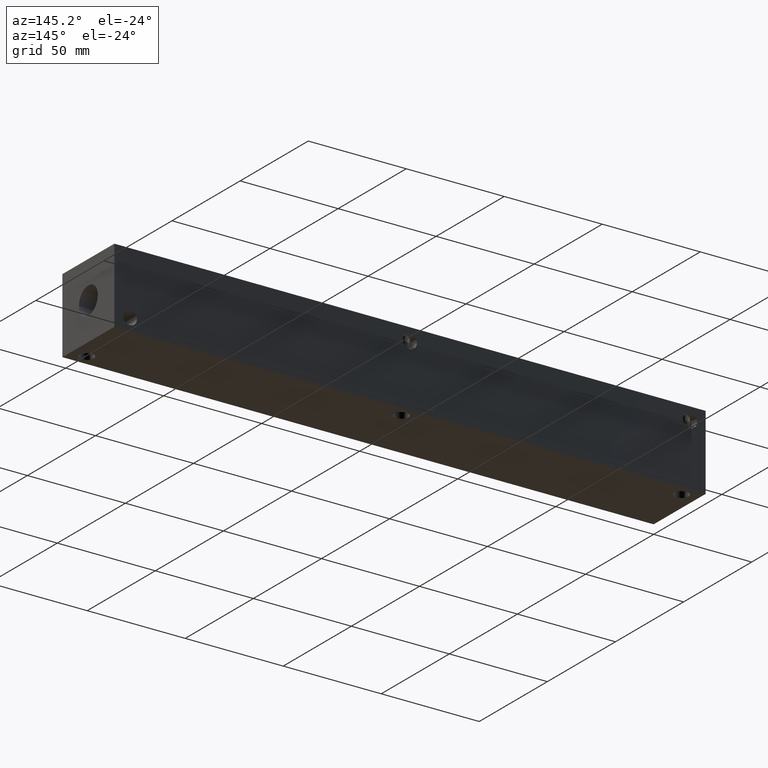
[diagram: clean part render]
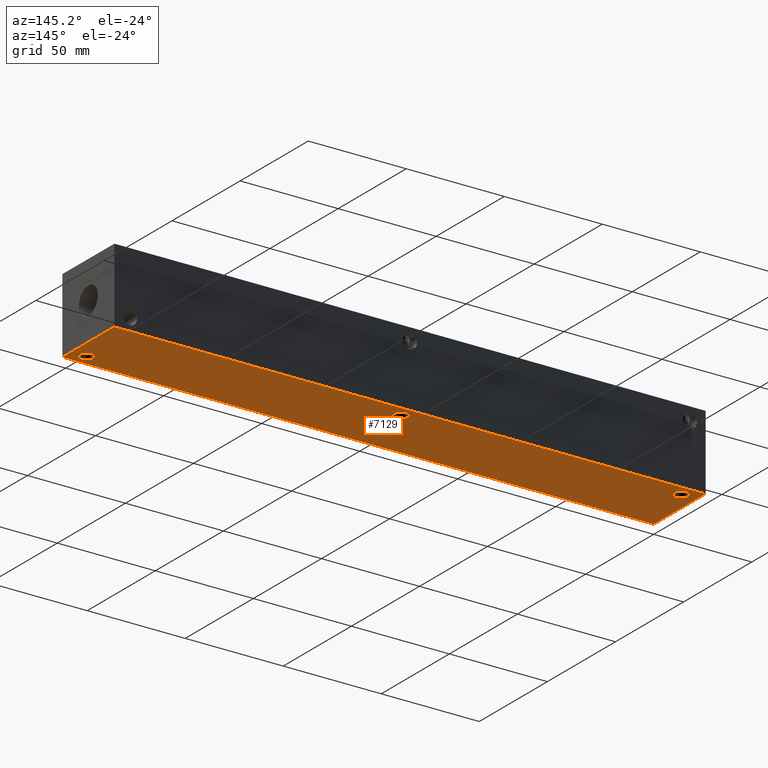
[diagram: same view with one face highlighted and labeled with its STEP entity id]
A machine part, auxiliary view. The second image highlights one B-rep face of the part: STEP entity #7129.
In plain terms, the highlighted planar face has unit normal (0, 0, 1).
Its self-contained STEP definition (entity closure, byte-faithful):
#99=CIRCLE('',#7396,3.5687);
#100=CIRCLE('',#7398,3.5687);
#101=CIRCLE('',#7400,3.5687);
#215=FACE_BOUND('',#1218,.T.);
#216=FACE_BOUND('',#1219,.T.);
#217=FACE_BOUND('',#1220,.T.);
#432=PLANE('',#7500);
#795=FACE_OUTER_BOUND('',#1217,.T.);
#1217=EDGE_LOOP('',(#6359,#6360,#6361,#6362));
#1218=EDGE_LOOP('',(#6363));
#1219=EDGE_LOOP('',(#6364));
#1220=EDGE_LOOP('',(#6365));
#1880=LINE('',#12252,#2547);
#1883=LINE('',#12257,#2550);
#1885=LINE('',#12261,#2552);
#1887=LINE('',#12264,#2554);
#2547=VECTOR('',#8866,10.);
#2550=VECTOR('',#8871,10.);
#2552=VECTOR('',#8875,10.);
#2554=VECTOR('',#8879,10.);
#3358=VERTEX_POINT('',#12050);
#3359=VERTEX_POINT('',#12054);
#3360=VERTEX_POINT('',#12058);
#3425=VERTEX_POINT('',#12250);
#3426=VERTEX_POINT('',#12251);
#3427=VERTEX_POINT('',#12256);
#3428=VERTEX_POINT('',#12260);
#4311=EDGE_CURVE('',#3358,#3358,#99,.T.);
#4313=EDGE_CURVE('',#3359,#3359,#100,.T.);
#4315=EDGE_CURVE('',#3360,#3360,#101,.T.);
#4400=EDGE_CURVE('',#3425,#3426,#1880,.T.);
#4403=EDGE_CURVE('',#3427,#3425,#1883,.T.);
#4405=EDGE_CURVE('',#3428,#3427,#1885,.T.);
#4407=EDGE_CURVE('',#3426,#3428,#1887,.T.);
#6359=ORIENTED_EDGE('',*,*,#4407,.F.);
#6360=ORIENTED_EDGE('',*,*,#4400,.F.);
#6361=ORIENTED_EDGE('',*,*,#4403,.F.);
#6362=ORIENTED_EDGE('',*,*,#4405,.F.);
#6363=ORIENTED_EDGE('',*,*,#4311,.T.);
#6364=ORIENTED_EDGE('',*,*,#4313,.T.);
#6365=ORIENTED_EDGE('',*,*,#4315,.T.);
#7129=ADVANCED_FACE('',(#795,#215,#216,#217),#432,.F.);
#7396=AXIS2_PLACEMENT_3D('',#12052,#8634,#8635);
#7398=AXIS2_PLACEMENT_3D('',#12056,#8639,#8640);
#7400=AXIS2_PLACEMENT_3D('',#12060,#8644,#8645);
#7500=AXIS2_PLACEMENT_3D('',#12266,#8882,#8883);
#8634=DIRECTION('center_axis',(0.,0.,1.));
#8635=DIRECTION('ref_axis',(1.,0.,0.));
#8639=DIRECTION('center_axis',(0.,0.,1.));
#8640=DIRECTION('ref_axis',(1.,0.,0.));
#8644=DIRECTION('center_axis',(0.,0.,1.));
#8645=DIRECTION('ref_axis',(1.,0.,0.));
#8866=DIRECTION('',(0.,-1.,0.));
#8871=DIRECTION('',(-1.,0.,0.));
#8875=DIRECTION('',(0.,1.,0.));
#8879=DIRECTION('',(1.,0.,0.));
#8882=DIRECTION('center_axis',(0.,0.,1.));
#8883=DIRECTION('ref_axis',(1.,0.,0.));
#12050=CARTESIAN_POINT('',(147.2565,31.75,0.));
#12052=CARTESIAN_POINT('Origin',(150.8252,31.75,0.));
#12054=CARTESIAN_POINT('',(4.3561,31.75,0.));
#12056=CARTESIAN_POINT('Origin',(7.9248,31.75,0.));
#12058=CARTESIAN_POINT('',(290.1061,6.35,0.));
#12060=CARTESIAN_POINT('Origin',(293.6748,6.35,0.));
#12250=CARTESIAN_POINT('',(0.,38.1,0.));
#12251=CARTESIAN_POINT('',(0.,0.,0.));
#12252=CARTESIAN_POINT('',(0.,38.1,0.));
#12256=CARTESIAN_POINT('',(301.625,38.1,0.));
#12257=CARTESIAN_POINT('',(301.625,38.1,0.));
#12260=CARTESIAN_POINT('',(301.625,0.,0.));
#12261=CARTESIAN_POINT('',(301.625,0.,0.));
#12264=CARTESIAN_POINT('',(0.,0.,0.));
#12266=CARTESIAN_POINT('Origin',(150.8125,19.05,0.));